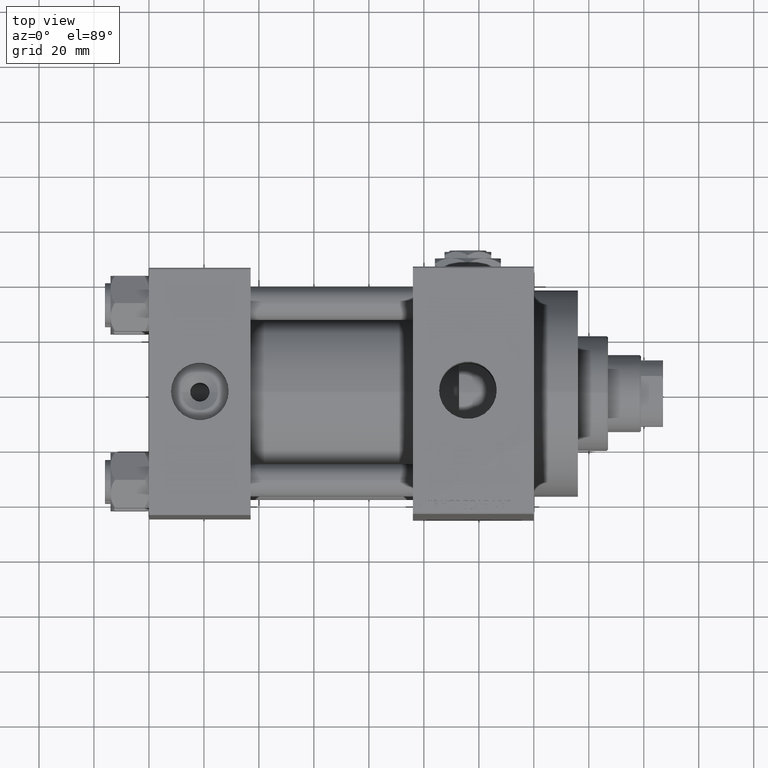
[diagram: clean part render]
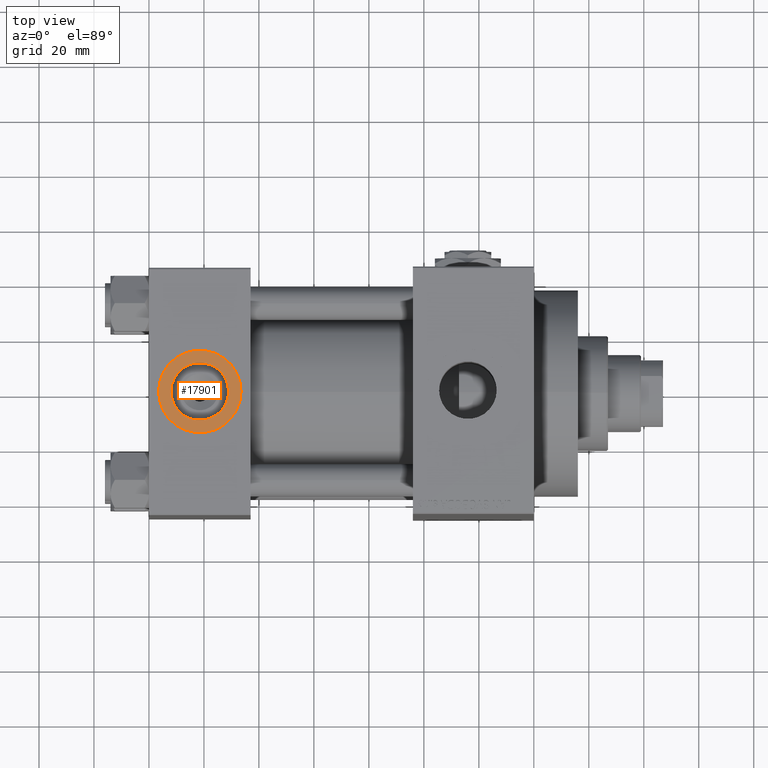
[diagram: same view with one face highlighted and labeled with its STEP entity id]
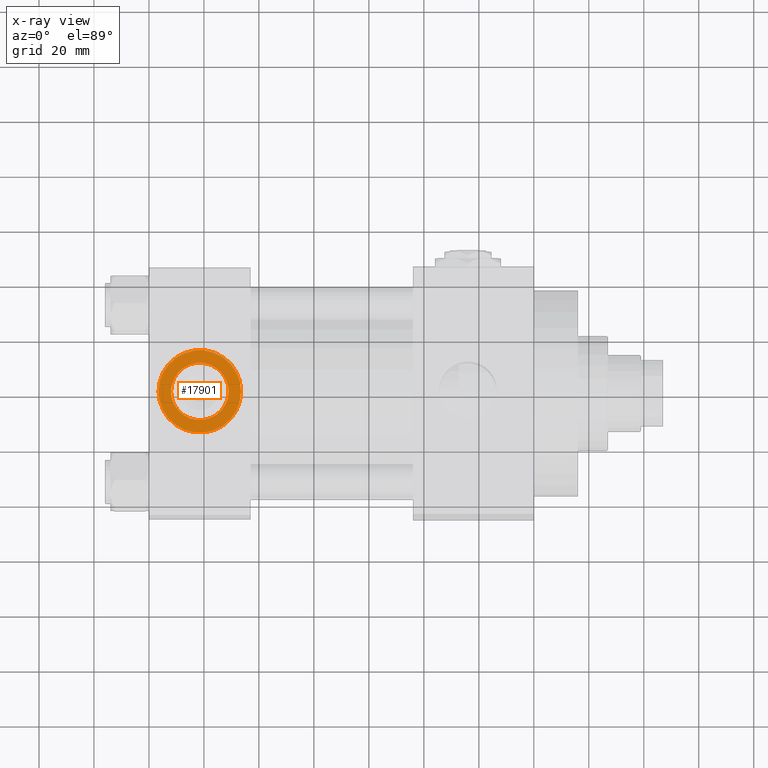
[diagram: x-ray of the same camera — body ghosted, the highlighted face saturated]
A machine part, top view. The second image highlights one B-rep face of the part: STEP entity #17901.
The next image is the same camera in x-ray: the body ghosted, the highlighted face saturated — about 0% of this face is hidden behind the body in this view.
In plain terms, the highlighted planar face has unit normal (0, 0, 1).
Its self-contained STEP definition (entity closure, byte-faithful):
#1901 = DIRECTION ( 'NONE',  ( 1.000000000000000000, 0.000000000000000000, 0.000000000000000000 ) ) ;
#1960 = DIRECTION ( 'NONE',  ( 1.000000000000000000, 0.000000000000000000, 0.000000000000000000 ) ) ;
#2017 = AXIS2_PLACEMENT_3D ( 'NONE', #46012, #12099, #27672 ) ;
#3231 = CARTESIAN_POINT ( 'NONE',  ( 18.50000000000000000, -1.214306433183764966E-14, 44.79999999999999716 ) ) ;
#4497 = ORIENTED_EDGE ( 'NONE', *, *, #47744, .T. ) ;
#5091 = CARTESIAN_POINT ( 'NONE',  ( 18.50000000000000000, -1.214306433183764966E-14, 44.79999999999999716 ) ) ;
#9566 = CARTESIAN_POINT ( 'NONE',  ( 33.50000000000000000, -1.214306433183764966E-14, 44.79999999999999716 ) ) ;
#12099 = DIRECTION ( 'NONE',  ( 0.000000000000000000, 0.000000000000000000, 1.000000000000000000 ) ) ;
#13487 = EDGE_CURVE ( 'NONE', #15046, #44512, #19369, .T. ) ;
#14681 = CIRCLE ( 'NONE', #2017, 15.00000000000000355 ) ;
#14956 = EDGE_CURVE ( 'NONE', #45054, #23059, #14681, .T. ) ;
#15046 = VERTEX_POINT ( 'NONE', #30352 ) ;
#17901 = ADVANCED_FACE ( 'NONE', ( #48287, #40121 ), #47305, .T. ) ;
#18088 = DIRECTION ( 'NONE',  ( 0.000000000000000000, 0.000000000000000000, 1.000000000000000000 ) ) ;
#18483 = CARTESIAN_POINT ( 'NONE',  ( 8.019999999999999574, -1.085963448633122417E-14, 44.79999999999999716 ) ) ;
#18563 = AXIS2_PLACEMENT_3D ( 'NONE', #43244, #35800, #1901 ) ;
#19051 = CIRCLE ( 'NONE', #19843, 10.48000000000000043 ) ;
#19237 = DIRECTION ( 'NONE',  ( 0.000000000000000000, 0.000000000000000000, 1.000000000000000000 ) ) ;
#19369 = CIRCLE ( 'NONE', #18563, 10.48000000000000043 ) ;
#19843 = AXIS2_PLACEMENT_3D ( 'NONE', #24219, #35619, #1960 ) ;
#22652 = AXIS2_PLACEMENT_3D ( 'NONE', #3231, #18088, #43581 ) ;
#23059 = VERTEX_POINT ( 'NONE', #9566 ) ;
#24219 = CARTESIAN_POINT ( 'NONE',  ( 18.50000000000000000, -1.214306433183764966E-14, 44.79999999999999716 ) ) ;
#24734 = ORIENTED_EDGE ( 'NONE', *, *, #13487, .F. ) ;
#27140 = DIRECTION ( 'NONE',  ( 1.000000000000000000, 0.000000000000000000, 0.000000000000000000 ) ) ;
#27672 = DIRECTION ( 'NONE',  ( 1.000000000000000000, 0.000000000000000000, 0.000000000000000000 ) ) ;
#30352 = CARTESIAN_POINT ( 'NONE',  ( 28.98000000000000043, -1.214306433183764966E-14, 44.79999999999999716 ) ) ;
#32167 = CARTESIAN_POINT ( 'NONE',  ( 3.499999999999997780, -1.030609413311661928E-14, 44.79999999999999716 ) ) ;
#33545 = ORIENTED_EDGE ( 'NONE', *, *, #34802, .F. ) ;
#34802 = EDGE_CURVE ( 'NONE', #44512, #15046, #19051, .T. ) ;
#35619 = DIRECTION ( 'NONE',  ( 0.000000000000000000, 0.000000000000000000, 1.000000000000000000 ) ) ;
#35800 = DIRECTION ( 'NONE',  ( 0.000000000000000000, 0.000000000000000000, 1.000000000000000000 ) ) ;
#36868 = AXIS2_PLACEMENT_3D ( 'NONE', #5091, #19237, #27140 ) ;
#38431 = CIRCLE ( 'NONE', #36868, 15.00000000000000355 ) ;
#38503 = ORIENTED_EDGE ( 'NONE', *, *, #14956, .T. ) ;
#40121 = FACE_OUTER_BOUND ( 'NONE', #43344, .T. ) ;
#43244 = CARTESIAN_POINT ( 'NONE',  ( 18.50000000000000000, -1.214306433183764966E-14, 44.79999999999999716 ) ) ;
#43344 = EDGE_LOOP ( 'NONE', ( #4497, #38503 ) ) ;
#43359 = EDGE_LOOP ( 'NONE', ( #24734, #33545 ) ) ;
#43581 = DIRECTION ( 'NONE',  ( 1.000000000000000000, 0.000000000000000000, -0.000000000000000000 ) ) ;
#44512 = VERTEX_POINT ( 'NONE', #18483 ) ;
#45054 = VERTEX_POINT ( 'NONE', #32167 ) ;
#46012 = CARTESIAN_POINT ( 'NONE',  ( 18.50000000000000000, -1.214306433183764966E-14, 44.79999999999999716 ) ) ;
#47305 = PLANE ( 'NONE',  #22652 ) ;
#47744 = EDGE_CURVE ( 'NONE', #23059, #45054, #38431, .T. ) ;
#48287 = FACE_BOUND ( 'NONE', #43359, .T. ) ;